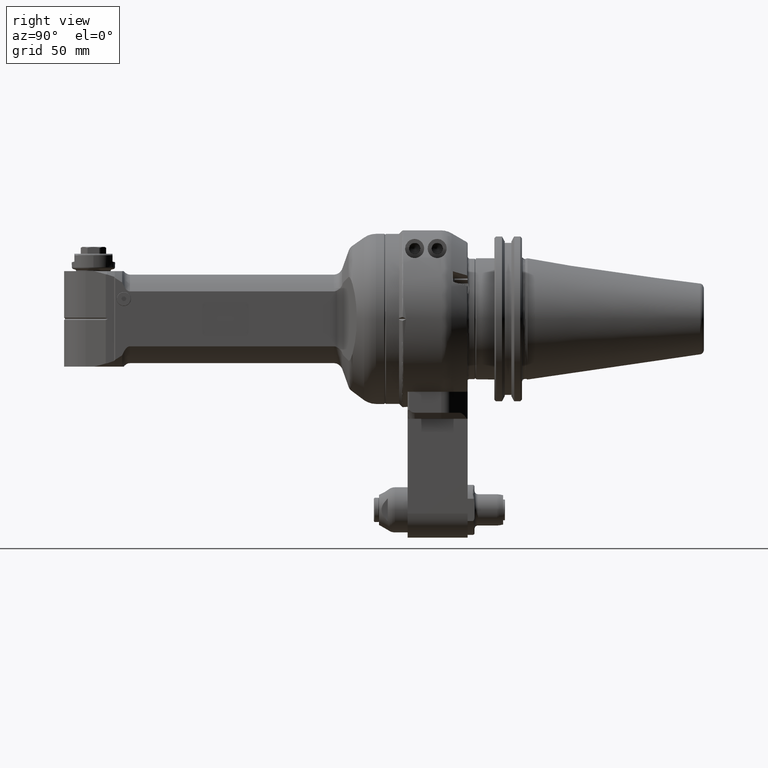
[diagram: clean part render]
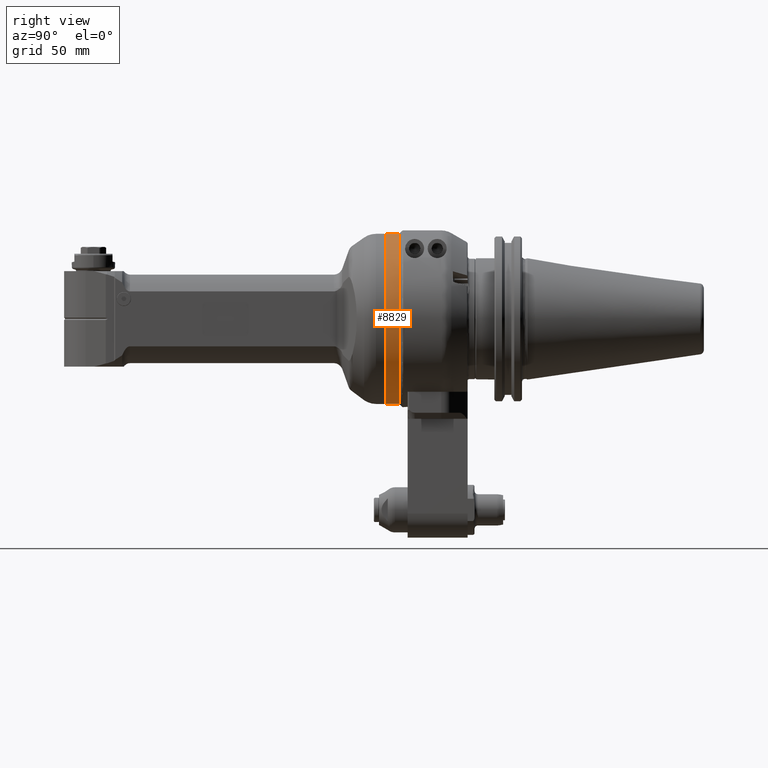
[diagram: same view with one face highlighted and labeled with its STEP entity id]
A machine part, right view. The second image highlights one B-rep face of the part: STEP entity #8829.
In plain terms, the highlighted cylindrical surface (bore or boss wall) has radius 49 mm, axis along (0, -1, -0).
Its self-contained STEP definition (entity closure, byte-faithful):
#746=FACE_OUTER_BOUND('',#1301,.T.);
#1301=EDGE_LOOP('',(#6095,#6096,#6097,#6098,#6099));
#1939=LINE('',#13877,#2535);
#2535=VECTOR('',#10726,49.);
#3139=CIRCLE('',#9483,49.);
#3140=CIRCLE('',#9484,49.);
#3141=CIRCLE('',#9486,49.);
#3745=VERTEX_POINT('',#13870);
#3746=VERTEX_POINT('',#13871);
#3747=VERTEX_POINT('',#13876);
#4659=EDGE_CURVE('',#3745,#3746,#3139,.T.);
#4661=EDGE_CURVE('',#3746,#3745,#3140,.T.);
#4662=EDGE_CURVE('',#3745,#3747,#1939,.T.);
#4663=EDGE_CURVE('',#3747,#3747,#3141,.T.);
#6095=ORIENTED_EDGE('',*,*,#4659,.F.);
#6096=ORIENTED_EDGE('',*,*,#4662,.T.);
#6097=ORIENTED_EDGE('',*,*,#4663,.F.);
#6098=ORIENTED_EDGE('',*,*,#4662,.F.);
#6099=ORIENTED_EDGE('',*,*,#4661,.F.);
#8648=CYLINDRICAL_SURFACE('',#9485,49.);
#8829=ADVANCED_FACE('',(#746),#8648,.T.);
#9483=AXIS2_PLACEMENT_3D('',#13872,#10719,#10720);
#9484=AXIS2_PLACEMENT_3D('',#13874,#10722,#10723);
#9485=AXIS2_PLACEMENT_3D('',#13875,#10724,#10725);
#9486=AXIS2_PLACEMENT_3D('',#13878,#10727,#10728);
#10719=DIRECTION('center_axis',(1.,0.,0.));
#10720=DIRECTION('ref_axis',(0.,-0.0871557427476639,0.996194698091745));
#10722=DIRECTION('center_axis',(1.,0.,0.));
#10723=DIRECTION('ref_axis',(0.,-0.0871557427476639,0.996194698091745));
#10724=DIRECTION('center_axis',(1.,0.,0.));
#10725=DIRECTION('ref_axis',(0.,-0.0871557427476639,0.996194698091745));
#10726=DIRECTION('',(-1.,0.,0.));
#10727=DIRECTION('center_axis',(-1.,0.,0.));
#10728=DIRECTION('ref_axis',(0.,-0.0871557427476639,0.996194698091745));
#13870=CARTESIAN_POINT('',(38.5,4.270631394635,-48.8135402065));
#13871=CARTESIAN_POINT('',(38.5,-4.27063139463553,48.8135402064955));
#13872=CARTESIAN_POINT('Origin',(38.5,0.,0.));
#13874=CARTESIAN_POINT('Origin',(38.5,0.,0.));
#13875=CARTESIAN_POINT('Origin',(35.1,0.,0.));
#13876=CARTESIAN_POINT('',(31.,4.270631394635,-48.8135402065));
#13877=CARTESIAN_POINT('',(35.1,4.27063139463554,-48.8135402064955));
#13878=CARTESIAN_POINT('Origin',(31.,0.,0.));